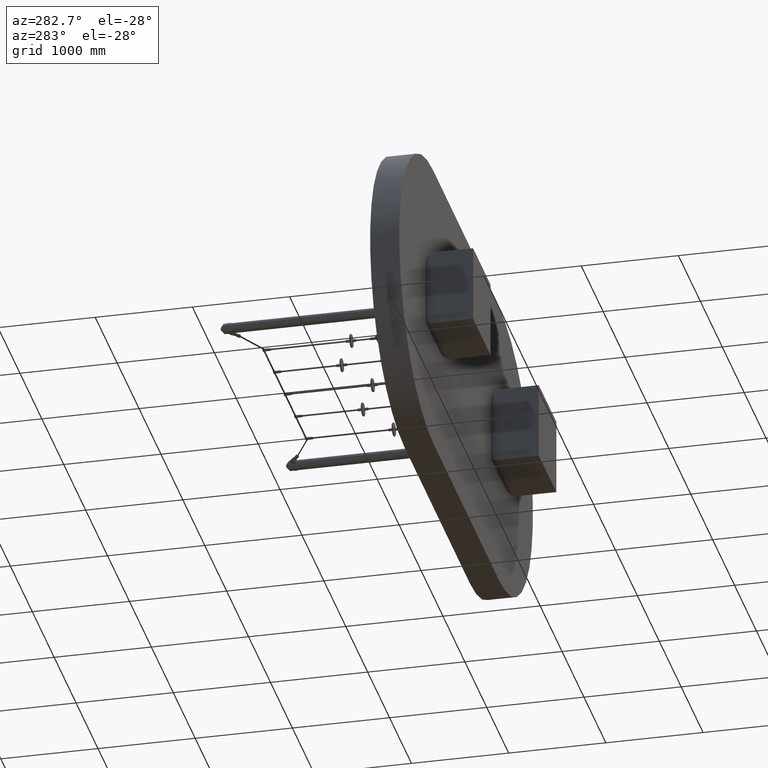
[diagram: clean part render]
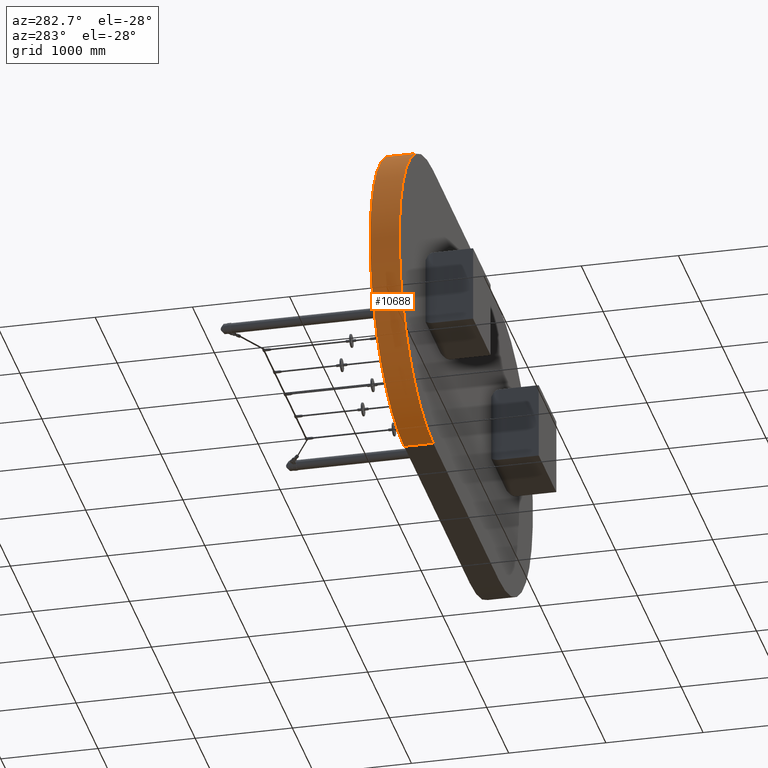
[diagram: same view with one face highlighted and labeled with its STEP entity id]
A machine part, auxiliary view. The second image highlights one B-rep face of the part: STEP entity #10688.
In plain terms, the highlighted cylindrical surface (partial cylindrical patch) has radius 1550 mm, axis along (-0, -1, -0).
Its self-contained STEP definition (entity closure, byte-faithful):
#1008 = VERTEX_POINT ( 'NONE', #8582 ) ;
#1394 = VERTEX_POINT ( 'NONE', #5064 ) ;
#3254 = AXIS2_PLACEMENT_3D ( 'NONE', #3711, #3651, #3584 ) ;
#3263 = CARTESIAN_POINT ( 'NONE',  ( 0.0000000000000000000, 0.0000000000000000000, -1550.000000000000000 ) ) ;
#3274 = EDGE_CURVE ( 'NONE', #13250, #1008, #3639, .T. ) ;
#3304 = EDGE_CURVE ( 'NONE', #16299, #1008, #17590, .T. ) ;
#3332 = EDGE_CURVE ( 'NONE', #1394, #16299, #14027, .T. ) ;
#3340 = EDGE_CURVE ( 'NONE', #1394, #13250, #17183, .T. ) ;
#3465 = DIRECTION ( 'NONE',  ( -0.0000000000000000000, -1.000000000000000000, -0.0000000000000000000 ) ) ;
#3584 = DIRECTION ( 'NONE',  ( 0.0000000000000000000, 0.0000000000000000000, 1.000000000000000000 ) ) ;
#3639 = CIRCLE ( 'NONE', #15275, 1550.000000000000000 ) ;
#3651 = DIRECTION ( 'NONE',  ( 0.0000000000000000000, 1.000000000000000000, 0.0000000000000000000 ) ) ;
#3711 = CARTESIAN_POINT ( 'NONE',  ( 0.0000000000000000000, 300.0000000000000000, 0.0000000000000000000 ) ) ;
#3775 = CARTESIAN_POINT ( 'NONE',  ( 0.0000000000000000000, 300.0000000000000000, -1550.000000000000000 ) ) ;
#3946 = DIRECTION ( 'NONE',  ( -0.0000000000000000000, -1.000000000000000000, -0.0000000000000000000 ) ) ;
#4161 = ORIENTED_EDGE ( 'NONE', *, *, #3304, .F. ) ;
#4320 = FACE_OUTER_BOUND ( 'NONE', #7339, .T. ) ;
#4786 = ORIENTED_EDGE ( 'NONE', *, *, #3332, .F. ) ;
#4850 = DIRECTION ( 'NONE',  ( -0.0000000000000000000, -1.000000000000000000, -0.0000000000000000000 ) ) ;
#4918 = CARTESIAN_POINT ( 'NONE',  ( 0.0000000000000000000, 300.0000000000000000, 1550.000000000000000 ) ) ;
#5064 = CARTESIAN_POINT ( 'NONE',  ( 0.0000000000000000000, 300.0000000000000000, -1550.000000000000000 ) ) ;
#5448 = ORIENTED_EDGE ( 'NONE', *, *, #3274, .T. ) ;
#6382 = DIRECTION ( 'NONE',  ( 0.0000000000000000000, 0.0000000000000000000, 1.000000000000000000 ) ) ;
#6434 = DIRECTION ( 'NONE',  ( 0.0000000000000000000, 1.000000000000000000, 0.0000000000000000000 ) ) ;
#6501 = CARTESIAN_POINT ( 'NONE',  ( 0.0000000000000000000, 0.0000000000000000000, 0.0000000000000000000 ) ) ;
#7339 = EDGE_LOOP ( 'NONE', ( #5448, #4161, #4786, #12294 ) ) ;
#8582 = CARTESIAN_POINT ( 'NONE',  ( 0.0000000000000000000, 0.0000000000000000000, 1550.000000000000000 ) ) ;
#10688 = ADVANCED_FACE ( 'NONE', ( #4320 ), #13812, .T. ) ;
#11253 = VECTOR ( 'NONE', #4850, 1000.000000000000000 ) ;
#12294 = ORIENTED_EDGE ( 'NONE', *, *, #3340, .T. ) ;
#12584 = DIRECTION ( 'NONE',  ( 0.0000000000000000000, 0.0000000000000000000, -1.000000000000000000 ) ) ;
#13250 = VERTEX_POINT ( 'NONE', #3263 ) ;
#13606 = VECTOR ( 'NONE', #3465, 1000.000000000000000 ) ;
#13812 = CYLINDRICAL_SURFACE ( 'NONE', #14847, 1550.000000000000000 ) ;
#13835 = CARTESIAN_POINT ( 'NONE',  ( 0.0000000000000000000, 300.0000000000000000, 0.0000000000000000000 ) ) ;
#14027 = CIRCLE ( 'NONE', #3254, 1550.000000000000000 ) ;
#14847 = AXIS2_PLACEMENT_3D ( 'NONE', #13835, #3946, #12584 ) ;
#15275 = AXIS2_PLACEMENT_3D ( 'NONE', #6501, #6434, #6382 ) ;
#16016 = CARTESIAN_POINT ( 'NONE',  ( 0.0000000000000000000, 300.0000000000000000, 1550.000000000000000 ) ) ;
#16299 = VERTEX_POINT ( 'NONE', #16016 ) ;
#17183 = LINE ( 'NONE', #3775, #13606 ) ;
#17590 = LINE ( 'NONE', #4918, #11253 ) ;